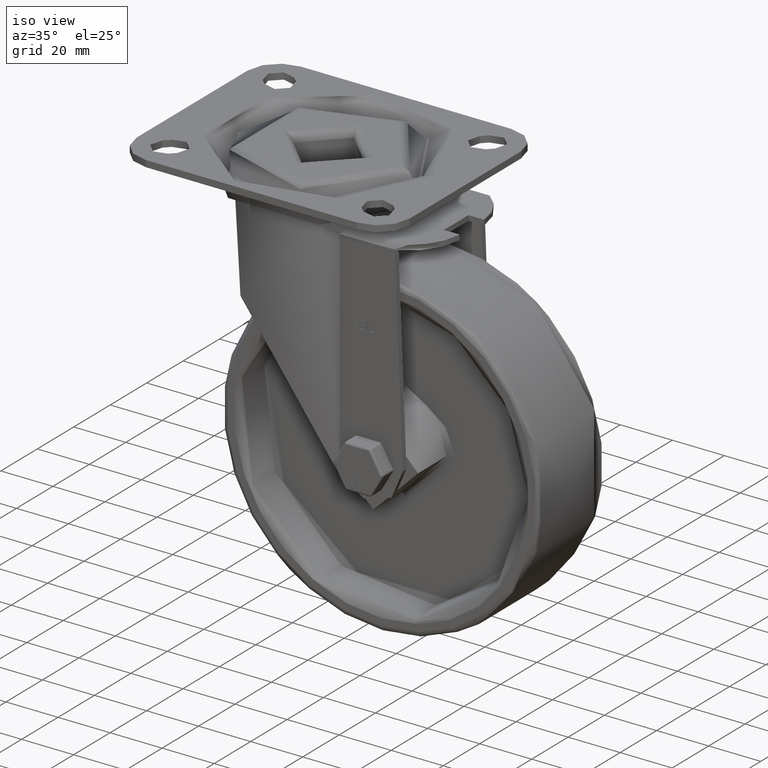
[diagram: clean part render]
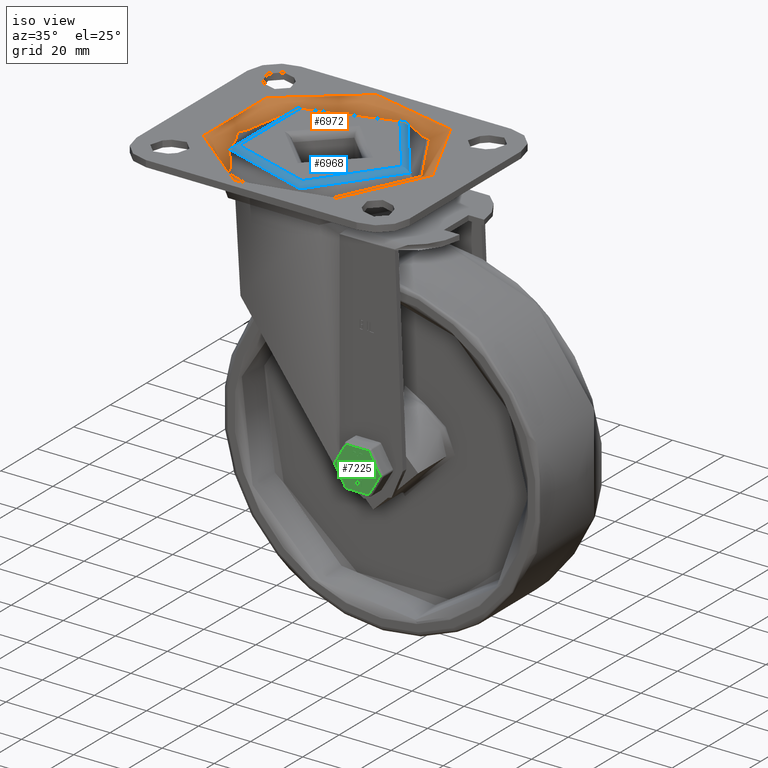
[diagram: same view with three faces highlighted in distinct colors, each labeled with its STEP entity id]
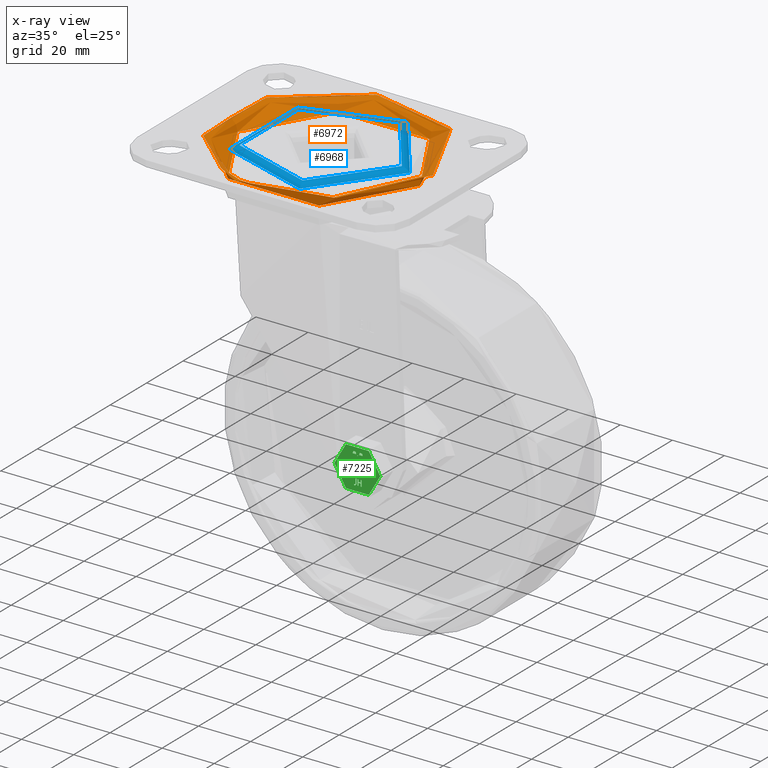
[diagram: x-ray of the same camera — body ghosted, the three highlighted faces saturated]
A machine part, iso view with three faces highlighted in distinct colors.
The next image is the same camera in x-ray (body ghosted, the three faces saturated) — at least one of them is partly hidden behind the body in this view.
Their STEP definitions:

[orange] entity #6972 — the highlighted toroidal blend (fillet) surface has major radius 40 mm and minor (blend) radius 5 mm.
#704=TOROIDAL_SURFACE('',#7561,40.,5.);
#736=FACE_OUTER_BOUND('',#1156,.T.);
#1156=EDGE_LOOP('',(#4778,#4779,#4780,#4781));
#2734=CIRCLE('',#7562,40.);
#2735=CIRCLE('',#7563,5.);
#2736=CIRCLE('',#7564,35.);
#3054=VERTEX_POINT('',#10345);
#3055=VERTEX_POINT('',#10347);
#3721=EDGE_CURVE('',#3054,#3054,#2734,.T.);
#3722=EDGE_CURVE('',#3054,#3055,#2735,.T.);
#3723=EDGE_CURVE('',#3055,#3055,#2736,.T.);
#4778=ORIENTED_EDGE('',*,*,#3721,.T.);
#4779=ORIENTED_EDGE('',*,*,#3722,.T.);
#4780=ORIENTED_EDGE('',*,*,#3723,.T.);
#4781=ORIENTED_EDGE('',*,*,#3722,.F.);
#6972=ADVANCED_FACE('',(#736),#704,.T.);
#7561=AXIS2_PLACEMENT_3D('',#10344,#8358,#8359);
#7562=AXIS2_PLACEMENT_3D('',#10346,#8360,#8361);
#7563=AXIS2_PLACEMENT_3D('',#10348,#8362,#8363);
#7564=AXIS2_PLACEMENT_3D('',#10349,#8364,#8365);
#8358=DIRECTION('center_axis',(0.,0.,-1.));
#8359=DIRECTION('ref_axis',(-1.,0.,0.));
#8360=DIRECTION('center_axis',(0.,0.,1.));
#8361=DIRECTION('ref_axis',(1.,1.22464679914735E-16,0.));
#8362=DIRECTION('center_axis',(-1.22464679914735E-16,-1.,0.));
#8363=DIRECTION('ref_axis',(1.,-1.22464679914735E-16,0.));
#8364=DIRECTION('center_axis',(6.53866449118381E-17,0.,-1.));
#8365=DIRECTION('ref_axis',(-1.,0.,-6.53866449118381E-17));
#10344=CARTESIAN_POINT('Origin',(1.63670789225912E-16,0.,-2.5));
#10345=CARTESIAN_POINT('',(40.,4.89858719658941E-15,2.5));
#10346=CARTESIAN_POINT('Origin',(1.63670789225912E-16,0.,2.5));
#10347=CARTESIAN_POINT('',(35.,4.28626379701574E-15,-2.49999999999993));
#10348=CARTESIAN_POINT('Origin',(40.,-4.89858719658941E-15,-2.5));
#10349=CARTESIAN_POINT('Origin',(1.63670789225907E-16,0.,-2.49999999999993));

[blue] entity #6968 — the highlighted toroidal blend (fillet) surface has major radius 28.0791 mm and minor (blend) radius 3.9967 mm.
#702=TOROIDAL_SURFACE('',#7549,28.0790627287701,3.99674981698405);
#732=FACE_OUTER_BOUND('',#1152,.T.);
#1152=EDGE_LOOP('',(#4762,#4763,#4764,#4765));
#2726=CIRCLE('',#7550,31.2000000000001);
#2727=CIRCLE('',#7551,3.99674981698405);
#2728=CIRCLE('',#7552,28.0790627287701);
#3048=VERTEX_POINT('',#10325);
#3049=VERTEX_POINT('',#10327);
#3711=EDGE_CURVE('',#3048,#3048,#2726,.T.);
#3712=EDGE_CURVE('',#3048,#3049,#2727,.T.);
#3713=EDGE_CURVE('',#3049,#3049,#2728,.T.);
#4762=ORIENTED_EDGE('',*,*,#3711,.F.);
#4763=ORIENTED_EDGE('',*,*,#3712,.T.);
#4764=ORIENTED_EDGE('',*,*,#3713,.F.);
#4765=ORIENTED_EDGE('',*,*,#3712,.F.);
#6968=ADVANCED_FACE('',(#732),#702,.T.);
#7549=AXIS2_PLACEMENT_3D('',#10324,#8332,#8333);
#7550=AXIS2_PLACEMENT_3D('',#10326,#8334,#8335);
#7551=AXIS2_PLACEMENT_3D('',#10328,#8336,#8337);
#7552=AXIS2_PLACEMENT_3D('',#10329,#8338,#8339);
#8332=DIRECTION('center_axis',(6.53866449118381E-17,0.,-1.));
#8333=DIRECTION('ref_axis',(-1.,0.,-6.23024418001784E-17));
#8334=DIRECTION('center_axis',(6.53866449118381E-17,0.,-1.));
#8335=DIRECTION('ref_axis',(-1.,0.,-6.53866449118381E-17));
#8336=DIRECTION('center_axis',(-1.22464679914735E-16,-1.,-8.00755453982671E-33));
#8337=DIRECTION('ref_axis',(1.,-1.22464679914735E-16,6.92249353335316E-17));
#8338=DIRECTION('center_axis',(0.,0.,1.));
#8339=DIRECTION('ref_axis',(1.,0.,0.));
#10324=CARTESIAN_POINT('Origin',(0.,0.,-1.49674981698399));
#10325=CARTESIAN_POINT('',(31.2000000000001,-3.82089801333975E-15,1.));
#10326=CARTESIAN_POINT('Origin',(-6.51824679655219E-17,0.,1.));
#10327=CARTESIAN_POINT('',(28.0790627287701,-3.4386934293846E-15,2.5));
#10328=CARTESIAN_POINT('Origin',(28.0790627287701,-3.4386934293846E-15,
-1.49674981698399));
#10329=CARTESIAN_POINT('Origin',(0.,0.,2.5));

[green] entity #7225 — the highlighted planar face has unit normal (-0, -1, 0).
#330=B_SPLINE_CURVE_WITH_KNOTS('',2,(#17586,#17587,#17588,#17589),
 .UNSPECIFIED.,.F.,.F.,(3,1,3),(0.,1.,2.),.UNSPECIFIED.);
#331=B_SPLINE_CURVE_WITH_KNOTS('',2,(#17591,#17592,#17593,#17594),
 .UNSPECIFIED.,.F.,.F.,(3,1,3),(0.,1.,2.),.UNSPECIFIED.);
#332=B_SPLINE_CURVE_WITH_KNOTS('',2,(#17598,#17599,#17600,#17601,#17602,
#17603),.UNSPECIFIED.,.F.,.F.,(3,1,1,1,3),(0.,1.,1.99999999999993,3.00827912477809,
4.01655824955625),.UNSPECIFIED.);
#333=B_SPLINE_CURVE_WITH_KNOTS('',2,(#17611,#17612,#17613,#17614,#17615,
#17616),.UNSPECIFIED.,.F.,.F.,(3,1,1,1,3),(0.,1.,1.99999999999993,3.00768321512988,
4.01536643025982),.UNSPECIFIED.);
#334=B_SPLINE_CURVE_WITH_KNOTS('',2,(#17620,#17621,#17622,#17623,#17624,
#17625),.UNSPECIFIED.,.F.,.F.,(3,1,1,1,3),(0.,1.,2.,2.99231678486998,3.98463356973996),
 .UNSPECIFIED.);
#335=B_SPLINE_CURVE_WITH_KNOTS('',2,(#17633,#17634,#17635,#17636),
 .UNSPECIFIED.,.F.,.F.,(3,1,3),(0.,1.,2.),.UNSPECIFIED.);
#336=B_SPLINE_CURVE_WITH_KNOTS('',2,(#17638,#17639,#17640,#17641),
 .UNSPECIFIED.,.F.,.F.,(3,1,3),(0.,1.,2.),.UNSPECIFIED.);
#337=B_SPLINE_CURVE_WITH_KNOTS('',2,(#17645,#17646,#17647,#17648,#17649,
#17650),.UNSPECIFIED.,.F.,.F.,(3,1,1,1,3),(0.,1.,2.,3.,3.99999999999994),
 .UNSPECIFIED.);
#338=B_SPLINE_CURVE_WITH_KNOTS('',2,(#17654,#17655,#17656,#17657,#17658,
#17659),.UNSPECIFIED.,.F.,.F.,(3,1,1,1,3),(0.,1.,2.,2.99163179916309,3.9832635983261),
 .UNSPECIFIED.);
#339=B_SPLINE_CURVE_WITH_KNOTS('',2,(#17663,#17664,#17665,#17666,#17667),
 .UNSPECIFIED.,.F.,.F.,(3,1,1,3),(0.,1.,2.,4.05874673629229),
 .UNSPECIFIED.);
#340=B_SPLINE_CURVE_WITH_KNOTS('',2,(#17671,#17672,#17673,#17674,#17675,
#17676,#17677,#17678,#17679,#17680,#17681,#17682,#17683,#17684),
 .UNSPECIFIED.,.F.,.F.,(3,1,1,1,1,1,1,1,1,1,1,1,3),(2.59332633308433,3.61650351907507,
4.63968070506577,5.65864108781717,6.67760147056856,7.68779660271567,8.6979917348628,
9.70400510123522,10.7100184676076,11.7252012266423,12.7403839856769,13.760110982666,
14.7798379796551),.UNSPECIFIED.);
#341=B_SPLINE_CURVE_WITH_KNOTS('',2,(#17686,#17687,#17688,#17689),
 .UNSPECIFIED.,.F.,.F.,(3,1,3),(14.7798379796551,14.9307861439262,14.955344591428),
 .UNSPECIFIED.);
#342=B_SPLINE_CURVE_WITH_KNOTS('',2,(#17691,#17692,#17693,#17694),
 .UNSPECIFIED.,.F.,.F.,(3,1,3),(0.835721234285714,1.,1.99999999999999),
 .UNSPECIFIED.);
#343=B_SPLINE_CURVE_WITH_KNOTS('',2,(#17696,#17697,#17698,#17699),
 .UNSPECIFIED.,.F.,.F.,(3,1,3),(1.99999999999999,8.88381706859683,15.7676341371938),
 .UNSPECIFIED.);
#344=B_SPLINE_CURVE_WITH_KNOTS('',2,(#17703,#17704,#17705,#17706,#17707,
#17708,#17709,#17710,#17711,#17712),.UNSPECIFIED.,.F.,.F.,(3,1,1,1,1,1,
1,1,3),(0.,1.,2.00000000000003,2.99139784946242,3.98279569892482,4.97798530244519,
5.97317490596557,6.97743524805971,7.98169559015383),.UNSPECIFIED.);
#345=B_SPLINE_CURVE_WITH_KNOTS('',2,(#17716,#17717,#17718,#17719),
 .UNSPECIFIED.,.F.,.F.,(3,1,3),(0.,1.,2.),.UNSPECIFIED.);
#346=B_SPLINE_CURVE_WITH_KNOTS('',2,(#17721,#17722,#17723,#17724),
 .UNSPECIFIED.,.F.,.F.,(3,1,3),(2.,2.14802801604429,2.1720950892248),
 .UNSPECIFIED.);
#347=B_SPLINE_CURVE_WITH_KNOTS('',2,(#17725,#17726,#17727,#17728),
 .UNSPECIFIED.,.F.,.F.,(3,1,3),(2.42039523109711,2.44469118258646,2.59332633308433),
 .UNSPECIFIED.);
#348=B_SPLINE_CURVE_WITH_KNOTS('',2,(#17731,#17732,#17733,#17734,#17735,
#17736),.UNSPECIFIED.,.F.,.F.,(3,1,1,1,3),(0.,1.,2.,3.00768321513003,4.0153664302601),
 .UNSPECIFIED.);
#349=B_SPLINE_CURVE_WITH_KNOTS('',2,(#17740,#17741,#17742,#17743,#17744,
#17745),.UNSPECIFIED.,.F.,.F.,(3,1,1,1,3),(0.,1.,1.99999999999996,2.9923167848699,
3.98463356973985),.UNSPECIFIED.);
#350=B_SPLINE_CURVE_WITH_KNOTS('',2,(#17749,#17750,#17751,#17752,#17753,
#17754,#17755,#17756,#17757,#17758,#17759,#17760,#17761,#17762),
 .UNSPECIFIED.,.F.,.F.,(3,1,1,1,1,1,1,1,1,1,1,1,3),(2.59332633308434,3.6165035190751,
4.63968070506582,5.65864108781724,6.67760147056865,7.68779660271578,8.69799173486291,
9.70400510123534,10.7100184676078,11.7252012266424,12.7403839856771,13.7601109826662,
14.7798379796553),.UNSPECIFIED.);
#351=B_SPLINE_CURVE_WITH_KNOTS('',2,(#17764,#17765,#17766,#17767),
 .UNSPECIFIED.,.F.,.F.,(3,1,3),(14.7798379796553,14.9307861439264,14.9553445914282),
 .UNSPECIFIED.);
#352=B_SPLINE_CURVE_WITH_KNOTS('',2,(#17769,#17770,#17771,#17772),
 .UNSPECIFIED.,.F.,.F.,(3,1,3),(0.835721234285862,1.,2.00000000000001),
 .UNSPECIFIED.);
#353=B_SPLINE_CURVE_WITH_KNOTS('',2,(#17774,#17775,#17776,#17777),
 .UNSPECIFIED.,.F.,.F.,(3,1,3),(2.00000000000001,8.88381706859695,15.7676341371941),
 .UNSPECIFIED.);
#354=B_SPLINE_CURVE_WITH_KNOTS('',2,(#17781,#17782,#17783,#17784,#17785,
#17786,#17787,#17788,#17789,#17790),.UNSPECIFIED.,.F.,.F.,(3,1,1,1,1,1,
1,1,3),(0.,1.,2.00000000000003,2.99139784946242,3.98279569892483,4.97798530244519,
5.97317490596557,6.97743524805971,7.98169559015383),.UNSPECIFIED.);
#355=B_SPLINE_CURVE_WITH_KNOTS('',2,(#17794,#17795,#17796,#17797),
 .UNSPECIFIED.,.F.,.F.,(3,1,3),(0.,1.,2.),.UNSPECIFIED.);
#356=B_SPLINE_CURVE_WITH_KNOTS('',2,(#17799,#17800,#17801,#17802),
 .UNSPECIFIED.,.F.,.F.,(3,1,3),(2.,2.14802801604429,2.17209508922479),
 .UNSPECIFIED.);
#357=B_SPLINE_CURVE_WITH_KNOTS('',2,(#17803,#17804,#17805,#17806),
 .UNSPECIFIED.,.F.,.F.,(3,1,3),(2.42039523109713,2.44469118258647,2.59332633308434),
 .UNSPECIFIED.);
#498=FACE_BOUND('',#1453,.T.);
#499=FACE_BOUND('',#1454,.T.);
#500=FACE_BOUND('',#1455,.T.);
#501=FACE_BOUND('',#1456,.T.);
#502=FACE_BOUND('',#1457,.T.);
#637=PLANE('',#8017);
#989=FACE_OUTER_BOUND('',#1452,.T.);
#1452=EDGE_LOOP('',(#6136,#6137,#6138,#6139,#6140,#6141));
#1453=EDGE_LOOP('',(#6142,#6143,#6144,#6145,#6146,#6147,#6148,#6149,#6150,
#6151,#6152,#6153,#6154));
#1454=EDGE_LOOP('',(#6155,#6156,#6157,#6158,#6159,#6160,#6161,#6162,#6163));
#1455=EDGE_LOOP('',(#6164,#6165,#6166,#6167,#6168,#6169,#6170,#6171,#6172,
#6173));
#1456=EDGE_LOOP('',(#6174,#6175,#6176,#6177));
#1457=EDGE_LOOP('',(#6178,#6179,#6180,#6181,#6182,#6183,#6184,#6185,#6186,
#6187));
#1987=LINE('',#17574,#2530);
#1988=LINE('',#17576,#2531);
#1989=LINE('',#17578,#2532);
#1990=LINE('',#17580,#2533);
#1991=LINE('',#17582,#2534);
#1992=LINE('',#17583,#2535);
#1993=LINE('',#17596,#2536);
#1994=LINE('',#17605,#2537);
#1995=LINE('',#17607,#2538);
#1996=LINE('',#17609,#2539);
#1997=LINE('',#17618,#2540);
#1998=LINE('',#17627,#2541);
#1999=LINE('',#17629,#2542);
#2000=LINE('',#17630,#2543);
#2001=LINE('',#17643,#2544);
#2002=LINE('',#17652,#2545);
#2003=LINE('',#17661,#2546);
#2004=LINE('',#17668,#2547);
#2005=LINE('',#17701,#2548);
#2006=LINE('',#17714,#2549);
#2007=LINE('',#17738,#2550);
#2008=LINE('',#17746,#2551);
#2009=LINE('',#17779,#2552);
#2010=LINE('',#17792,#2553);
#2530=VECTOR('',#9617,1000.);
#2531=VECTOR('',#9618,1000.);
#2532=VECTOR('',#9619,1000.);
#2533=VECTOR('',#9620,1000.);
#2534=VECTOR('',#9621,1000.);
#2535=VECTOR('',#9622,1000.);
#2536=VECTOR('',#9623,1000.);
#2537=VECTOR('',#9624,1000.);
#2538=VECTOR('',#9625,1000.);
#2539=VECTOR('',#9626,1000.);
#2540=VECTOR('',#9627,1000.);
#2541=VECTOR('',#9628,1000.);
#2542=VECTOR('',#9629,1000.);
#2543=VECTOR('',#9630,1000.);
#2544=VECTOR('',#9631,1000.);
#2545=VECTOR('',#9632,1000.);
#2546=VECTOR('',#9633,1000.);
#2547=VECTOR('',#9634,1000.);
#2548=VECTOR('',#9635,1000.);
#2549=VECTOR('',#9636,1000.);
#2550=VECTOR('',#9637,1000.);
#2551=VECTOR('',#9638,1000.);
#2552=VECTOR('',#9639,1000.);
#2553=VECTOR('',#9640,1000.);
#3472=VERTEX_POINT('',#17572);
#3473=VERTEX_POINT('',#17573);
#3474=VERTEX_POINT('',#17575);
#3475=VERTEX_POINT('',#17577);
#3476=VERTEX_POINT('',#17579);
#3477=VERTEX_POINT('',#17581);
#3478=VERTEX_POINT('',#17584);
#3479=VERTEX_POINT('',#17585);
#3480=VERTEX_POINT('',#17590);
#3481=VERTEX_POINT('',#17595);
#3482=VERTEX_POINT('',#17597);
#3483=VERTEX_POINT('',#17604);
#3484=VERTEX_POINT('',#17606);
#3485=VERTEX_POINT('',#17608);
#3486=VERTEX_POINT('',#17610);
#3487=VERTEX_POINT('',#17617);
#3488=VERTEX_POINT('',#17619);
#3489=VERTEX_POINT('',#17626);
#3490=VERTEX_POINT('',#17628);
#3491=VERTEX_POINT('',#17631);
#3492=VERTEX_POINT('',#17632);
#3493=VERTEX_POINT('',#17637);
#3494=VERTEX_POINT('',#17642);
#3495=VERTEX_POINT('',#17644);
#3496=VERTEX_POINT('',#17651);
#3497=VERTEX_POINT('',#17653);
#3498=VERTEX_POINT('',#17660);
#3499=VERTEX_POINT('',#17662);
#3500=VERTEX_POINT('',#17669);
#3501=VERTEX_POINT('',#17670);
#3502=VERTEX_POINT('',#17685);
#3503=VERTEX_POINT('',#17690);
#3504=VERTEX_POINT('',#17695);
#3505=VERTEX_POINT('',#17700);
#3506=VERTEX_POINT('',#17702);
#3507=VERTEX_POINT('',#17713);
#3508=VERTEX_POINT('',#17715);
#3509=VERTEX_POINT('',#17720);
#3510=VERTEX_POINT('',#17729);
#3511=VERTEX_POINT('',#17730);
#3512=VERTEX_POINT('',#17737);
#3513=VERTEX_POINT('',#17739);
#3514=VERTEX_POINT('',#17747);
#3515=VERTEX_POINT('',#17748);
#3516=VERTEX_POINT('',#17763);
#3517=VERTEX_POINT('',#17768);
#3518=VERTEX_POINT('',#17773);
#3519=VERTEX_POINT('',#17778);
#3520=VERTEX_POINT('',#17780);
#3521=VERTEX_POINT('',#17791);
#3522=VERTEX_POINT('',#17793);
#3523=VERTEX_POINT('',#17798);
#4386=EDGE_CURVE('',#3472,#3473,#1987,.T.);
#4387=EDGE_CURVE('',#3474,#3472,#1988,.T.);
#4388=EDGE_CURVE('',#3475,#3474,#1989,.T.);
#4389=EDGE_CURVE('',#3476,#3475,#1990,.T.);
#4390=EDGE_CURVE('',#3477,#3476,#1991,.T.);
#4391=EDGE_CURVE('',#3473,#3477,#1992,.T.);
#4392=EDGE_CURVE('',#3478,#3479,#330,.T.);
#4393=EDGE_CURVE('',#3479,#3480,#331,.T.);
#4394=EDGE_CURVE('',#3480,#3481,#1993,.T.);
#4395=EDGE_CURVE('',#3481,#3482,#332,.T.);
#4396=EDGE_CURVE('',#3482,#3483,#1994,.T.);
#4397=EDGE_CURVE('',#3483,#3484,#1995,.T.);
#4398=EDGE_CURVE('',#3484,#3485,#1996,.T.);
#4399=EDGE_CURVE('',#3485,#3486,#333,.T.);
#4400=EDGE_CURVE('',#3486,#3487,#1997,.T.);
#4401=EDGE_CURVE('',#3487,#3488,#334,.T.);
#4402=EDGE_CURVE('',#3488,#3489,#1998,.T.);
#4403=EDGE_CURVE('',#3489,#3490,#1999,.T.);
#4404=EDGE_CURVE('',#3490,#3478,#2000,.T.);
#4405=EDGE_CURVE('',#3491,#3492,#335,.T.);
#4406=EDGE_CURVE('',#3492,#3493,#336,.T.);
#4407=EDGE_CURVE('',#3493,#3494,#2001,.T.);
#4408=EDGE_CURVE('',#3494,#3495,#337,.T.);
#4409=EDGE_CURVE('',#3495,#3496,#2002,.T.);
#4410=EDGE_CURVE('',#3496,#3497,#338,.T.);
#4411=EDGE_CURVE('',#3497,#3498,#2003,.T.);
#4412=EDGE_CURVE('',#3498,#3499,#339,.T.);
#4413=EDGE_CURVE('',#3499,#3491,#2004,.T.);
#4414=EDGE_CURVE('',#3500,#3501,#340,.T.);
#4415=EDGE_CURVE('',#3501,#3502,#341,.T.);
#4416=EDGE_CURVE('',#3502,#3503,#342,.T.);
#4417=EDGE_CURVE('',#3503,#3504,#343,.T.);
#4418=EDGE_CURVE('',#3504,#3505,#2005,.T.);
#4419=EDGE_CURVE('',#3505,#3506,#344,.T.);
#4420=EDGE_CURVE('',#3506,#3507,#2006,.T.);
#4421=EDGE_CURVE('',#3507,#3508,#345,.T.);
#4422=EDGE_CURVE('',#3508,#3509,#346,.T.);
#4423=EDGE_CURVE('',#3509,#3500,#347,.T.);
#4424=EDGE_CURVE('',#3510,#3511,#348,.T.);
#4425=EDGE_CURVE('',#3511,#3512,#2007,.T.);
#4426=EDGE_CURVE('',#3512,#3513,#349,.T.);
#4427=EDGE_CURVE('',#3513,#3510,#2008,.T.);
#4428=EDGE_CURVE('',#3514,#3515,#350,.T.);
#4429=EDGE_CURVE('',#3515,#3516,#351,.T.);
#4430=EDGE_CURVE('',#3516,#3517,#352,.T.);
#4431=EDGE_CURVE('',#3517,#3518,#353,.T.);
#4432=EDGE_CURVE('',#3518,#3519,#2009,.T.);
#4433=EDGE_CURVE('',#3519,#3520,#354,.T.);
#4434=EDGE_CURVE('',#3520,#3521,#2010,.T.);
#4435=EDGE_CURVE('',#3521,#3522,#355,.T.);
#4436=EDGE_CURVE('',#3522,#3523,#356,.T.);
#4437=EDGE_CURVE('',#3523,#3514,#357,.T.);
#6136=ORIENTED_EDGE('',*,*,#4386,.F.);
#6137=ORIENTED_EDGE('',*,*,#4387,.F.);
#6138=ORIENTED_EDGE('',*,*,#4388,.F.);
#6139=ORIENTED_EDGE('',*,*,#4389,.F.);
#6140=ORIENTED_EDGE('',*,*,#4390,.F.);
#6141=ORIENTED_EDGE('',*,*,#4391,.F.);
#6142=ORIENTED_EDGE('',*,*,#4392,.T.);
#6143=ORIENTED_EDGE('',*,*,#4393,.T.);
#6144=ORIENTED_EDGE('',*,*,#4394,.T.);
#6145=ORIENTED_EDGE('',*,*,#4395,.T.);
#6146=ORIENTED_EDGE('',*,*,#4396,.T.);
#6147=ORIENTED_EDGE('',*,*,#4397,.T.);
#6148=ORIENTED_EDGE('',*,*,#4398,.T.);
#6149=ORIENTED_EDGE('',*,*,#4399,.T.);
#6150=ORIENTED_EDGE('',*,*,#4400,.T.);
#6151=ORIENTED_EDGE('',*,*,#4401,.T.);
#6152=ORIENTED_EDGE('',*,*,#4402,.T.);
#6153=ORIENTED_EDGE('',*,*,#4403,.T.);
#6154=ORIENTED_EDGE('',*,*,#4404,.T.);
#6155=ORIENTED_EDGE('',*,*,#4405,.T.);
#6156=ORIENTED_EDGE('',*,*,#4406,.T.);
#6157=ORIENTED_EDGE('',*,*,#4407,.T.);
#6158=ORIENTED_EDGE('',*,*,#4408,.T.);
#6159=ORIENTED_EDGE('',*,*,#4409,.T.);
#6160=ORIENTED_EDGE('',*,*,#4410,.T.);
#6161=ORIENTED_EDGE('',*,*,#4411,.T.);
#6162=ORIENTED_EDGE('',*,*,#4412,.T.);
#6163=ORIENTED_EDGE('',*,*,#4413,.T.);
#6164=ORIENTED_EDGE('',*,*,#4414,.T.);
#6165=ORIENTED_EDGE('',*,*,#4415,.T.);
#6166=ORIENTED_EDGE('',*,*,#4416,.T.);
#6167=ORIENTED_EDGE('',*,*,#4417,.T.);
#6168=ORIENTED_EDGE('',*,*,#4418,.T.);
#6169=ORIENTED_EDGE('',*,*,#4419,.T.);
#6170=ORIENTED_EDGE('',*,*,#4420,.T.);
#6171=ORIENTED_EDGE('',*,*,#4421,.T.);
#6172=ORIENTED_EDGE('',*,*,#4422,.T.);
#6173=ORIENTED_EDGE('',*,*,#4423,.T.);
#6174=ORIENTED_EDGE('',*,*,#4424,.T.);
#6175=ORIENTED_EDGE('',*,*,#4425,.T.);
#6176=ORIENTED_EDGE('',*,*,#4426,.T.);
#6177=ORIENTED_EDGE('',*,*,#4427,.T.);
#6178=ORIENTED_EDGE('',*,*,#4428,.T.);
#6179=ORIENTED_EDGE('',*,*,#4429,.T.);
#6180=ORIENTED_EDGE('',*,*,#4430,.T.);
#6181=ORIENTED_EDGE('',*,*,#4431,.T.);
#6182=ORIENTED_EDGE('',*,*,#4432,.T.);
#6183=ORIENTED_EDGE('',*,*,#4433,.T.);
#6184=ORIENTED_EDGE('',*,*,#4434,.T.);
#6185=ORIENTED_EDGE('',*,*,#4435,.T.);
#6186=ORIENTED_EDGE('',*,*,#4436,.T.);
#6187=ORIENTED_EDGE('',*,*,#4437,.T.);
#7225=ADVANCED_FACE('',(#989,#498,#499,#500,#501,#502),#637,.T.);
#8017=AXIS2_PLACEMENT_3D('',#17571,#9615,#9616);
#9615=DIRECTION('center_axis',(0.,-1.,-3.49148336110938E-15));
#9616=DIRECTION('ref_axis',(1.,0.,0.));
#9617=DIRECTION('',(1.,1.8789157342003E-30,-5.38142542831221E-16));
#9618=DIRECTION('',(0.5,-3.0237132876114E-15,0.866025403784439));
#9619=DIRECTION('',(-0.5,-3.0237132876114E-15,0.866025403784439));
#9620=DIRECTION('',(-1.,-1.25261048946687E-30,3.58761695220814E-16));
#9621=DIRECTION('',(-0.5,3.0237132876114E-15,-0.866025403784439));
#9622=DIRECTION('',(0.499999999999999,3.0237132876114E-15,-0.866025403784439));
#9623=DIRECTION('',(0.,3.49148336110938E-15,-1.));
#9624=DIRECTION('',(0.,-3.49148336110938E-15,1.));
#9625=DIRECTION('',(-1.,0.,0.));
#9626=DIRECTION('',(0.,3.49148336110938E-15,-1.));
#9627=DIRECTION('',(0.,-3.49148336110938E-15,1.));
#9628=DIRECTION('',(0.,3.49148336110938E-15,-1.));
#9629=DIRECTION('',(1.,0.,0.));
#9630=DIRECTION('',(0.,-3.49148336110938E-15,1.));
#9631=DIRECTION('',(0.,3.49148336110938E-15,-1.));
#9632=DIRECTION('',(-1.,0.,0.));
#9633=DIRECTION('',(1.,0.,0.));
#9634=DIRECTION('',(0.,-3.49148336110938E-15,1.));
#9635=DIRECTION('',(0.,3.49148336110938E-15,-1.));
#9636=DIRECTION('',(0.,-3.49148336110938E-15,1.));
#9637=DIRECTION('',(0.,-3.49148336110938E-15,1.));
#9638=DIRECTION('',(0.,3.49148336110938E-15,-1.));
#9639=DIRECTION('',(0.,3.49148336110938E-15,-1.));
#9640=DIRECTION('',(0.,-3.49148336110938E-15,1.));
#17571=CARTESIAN_POINT('Origin',(0.,-33.23,-33.2300000000001));
#17572=CARTESIAN_POINT('',(-4.4022958025709,-33.23,-25.6050000000001));
#17573=CARTESIAN_POINT('',(4.4022958025709,-33.23,-25.6050000000001));
#17574=CARTESIAN_POINT('',(2.28354585997652E-15,-33.23,-25.6050000000001));
#17575=CARTESIAN_POINT('',(-8.80459160514179,-33.23,-33.2300000000001));
#17576=CARTESIAN_POINT('',(-6.60344370385634,-33.23,-29.4175000000001));
#17577=CARTESIAN_POINT('',(-4.4022958025709,-33.23,-40.8550000000001));
#17578=CARTESIAN_POINT('',(-6.60344370385635,-33.23,-37.0425000000001));
#17579=CARTESIAN_POINT('',(4.40229580257089,-33.23,-40.8550000000001));
#17580=CARTESIAN_POINT('',(-2.10060506530995E-15,-33.23,-40.8550000000001));
#17581=CARTESIAN_POINT('',(8.80459160514179,-33.23,-33.2300000000001));
#17582=CARTESIAN_POINT('',(6.60344370385634,-33.23,-37.0425000000001));
#17583=CARTESIAN_POINT('',(6.60344370385635,-33.23,-29.4175000000001));
#17584=CARTESIAN_POINT('',(1.32731053178271,-33.23,-36.586332135036));
#17585=CARTESIAN_POINT('',(1.48262908617913,-33.23,-36.432255508111));
#17586=CARTESIAN_POINT('Ctrl Pts',(1.32731053178271,-33.23,-36.586332135036));
#17587=CARTESIAN_POINT('Ctrl Pts',(1.32731053178271,-33.23,-36.5219071474553));
#17588=CARTESIAN_POINT('Ctrl Pts',(1.41696217112697,-33.23,-36.432255508111));
#17589=CARTESIAN_POINT('Ctrl Pts',(1.48262908617913,-33.23,-36.432255508111));
#17590=CARTESIAN_POINT('',(1.63790883034207,-33.23,-36.586332135036));
#17591=CARTESIAN_POINT('Ctrl Pts',(1.48262908617913,-33.23,-36.432255508111));
#17592=CARTESIAN_POINT('Ctrl Pts',(1.54775265796254,-33.23,-36.432255508111));
#17593=CARTESIAN_POINT('Ctrl Pts',(1.63790883034207,-33.23,-36.5224116804905));
#17594=CARTESIAN_POINT('Ctrl Pts',(1.63790883034207,-33.23,-36.586332135036));
#17595=CARTESIAN_POINT('',(1.63790883034207,-33.23,-38.778178881186));
#17596=CARTESIAN_POINT('',(1.63790883034207,-33.23,-34.908166067518));
#17597=CARTESIAN_POINT('',(1.32731053178271,-33.23,-38.778178881186));
#17598=CARTESIAN_POINT('Ctrl Pts',(1.63790883034207,-33.23,-38.778178881186));
#17599=CARTESIAN_POINT('Ctrl Pts',(1.63790883034207,-33.23,-38.8426038687667));
#17600=CARTESIAN_POINT('Ctrl Pts',(1.54825719099781,-33.23,-38.932255508111));
#17601=CARTESIAN_POINT('Ctrl Pts',(1.4164576380917,-33.23,-38.932255508111));
#17602=CARTESIAN_POINT('Ctrl Pts',(1.32731053178271,-33.23,-38.843108401802));
#17603=CARTESIAN_POINT('Ctrl Pts',(1.32731053178271,-33.23,-38.778178881186));
#17604=CARTESIAN_POINT('',(1.32731053178271,-33.23,-37.7145456223683));
#17605=CARTESIAN_POINT('',(1.32731053178271,-33.23,-36.0040894405931));
#17606=CARTESIAN_POINT('',(0.420198944599399,-33.23,-37.7145456223683));
#17607=CARTESIAN_POINT('',(0.663655265891354,-33.23,-37.7145456223683));
#17608=CARTESIAN_POINT('',(0.420198944599399,-33.23,-38.778178881186));
#17609=CARTESIAN_POINT('',(0.420198944599399,-33.23,-35.4722728111842));
#17610=CARTESIAN_POINT('',(0.109600646040035,-33.23,-38.778178881186));
#17611=CARTESIAN_POINT('Ctrl Pts',(0.420198944599399,-33.23,-38.778178881186));
#17612=CARTESIAN_POINT('Ctrl Pts',(0.420198944599399,-33.23,-38.8426038687667));
#17613=CARTESIAN_POINT('Ctrl Pts',(0.330586115488619,-33.23,-38.932255508111));
#17614=CARTESIAN_POINT('Ctrl Pts',(0.198747752349027,-33.23,-38.932255508111));
#17615=CARTESIAN_POINT('Ctrl Pts',(0.109600646040035,-33.23,-38.843108401802));
#17616=CARTESIAN_POINT('Ctrl Pts',(0.109600646040035,-33.23,-38.778178881186));
#17617=CARTESIAN_POINT('',(0.109600646040035,-33.23,-36.586332135036));
#17618=CARTESIAN_POINT('',(0.109600646040035,-33.23,-36.0040894405931));
#17619=CARTESIAN_POINT('',(0.420198944599399,-33.23,-36.586332135036));
#17620=CARTESIAN_POINT('Ctrl Pts',(0.109600646040035,-33.23,-36.586332135036));
#17621=CARTESIAN_POINT('Ctrl Pts',(0.109600646040035,-33.23,-36.5219071474553));
#17622=CARTESIAN_POINT('Ctrl Pts',(0.199252285384297,-33.23,-36.432255508111));
#17623=CARTESIAN_POINT('Ctrl Pts',(0.330081582453349,-33.23,-36.432255508111));
#17624=CARTESIAN_POINT('Ctrl Pts',(0.420198944599399,-33.23,-36.5224116804905));
#17625=CARTESIAN_POINT('Ctrl Pts',(0.420198944599399,-33.23,-36.586332135036));
#17626=CARTESIAN_POINT('',(0.420198944599399,-33.23,-37.4064311787518));
#17627=CARTESIAN_POINT('',(0.420198944599399,-33.23,-34.908166067518));
#17628=CARTESIAN_POINT('',(1.32731053178271,-33.23,-37.4064311787518));
#17629=CARTESIAN_POINT('',(0.2100994722997,-33.23,-37.4064311787518));
#17630=CARTESIAN_POINT('',(1.32731053178271,-33.23,-35.318215589376));
#17631=CARTESIAN_POINT('',(-0.652554719086641,-33.23,-36.586332135036));
#17632=CARTESIAN_POINT('',(-0.497274974923701,-33.23,-36.432255508111));
#17633=CARTESIAN_POINT('Ctrl Pts',(-0.652554719086641,-33.23,-36.586332135036));
#17634=CARTESIAN_POINT('Ctrl Pts',(-0.652554719086641,-33.23,-36.5219071474553));
#17635=CARTESIAN_POINT('Ctrl Pts',(-0.562941889975861,-33.23,-36.432255508111));
#17636=CARTESIAN_POINT('Ctrl Pts',(-0.497274974923701,-33.23,-36.432255508111));
#17637=CARTESIAN_POINT('',(-0.341956420527277,-33.23,-36.586332135036));
#17638=CARTESIAN_POINT('Ctrl Pts',(-0.497274974923701,-33.23,-36.432255508111));
#17639=CARTESIAN_POINT('Ctrl Pts',(-0.43211259290681,-33.23,-36.432255508111));
#17640=CARTESIAN_POINT('Ctrl Pts',(-0.341956420527277,-33.23,-36.5224116804905));
#17641=CARTESIAN_POINT('Ctrl Pts',(-0.341956420527277,-33.23,-36.586332135036));
#17642=CARTESIAN_POINT('',(-0.341956420527277,-33.23,-38.41289696365));
#17643=CARTESIAN_POINT('',(-0.341956420527277,-33.23,-34.908166067518));
#17644=CARTESIAN_POINT('',(-0.862556892459716,-33.23,-38.932255508111));
#17645=CARTESIAN_POINT('Ctrl Pts',(-0.341956420527277,-33.23,-38.41289696365));
#17646=CARTESIAN_POINT('Ctrl Pts',(-0.341956420527277,-33.23,-38.5186548498894));
#17647=CARTESIAN_POINT('Ctrl Pts',(-0.425592473681773,-33.23,-38.7094847679222));
#17648=CARTESIAN_POINT('Ctrl Pts',(-0.564843591416497,-33.23,-38.8487358856569));
#17649=CARTESIAN_POINT('Ctrl Pts',(-0.755401837814907,-33.23,-38.932255508111));
#17650=CARTESIAN_POINT('Ctrl Pts',(-0.862556892459716,-33.23,-38.932255508111));
#17651=CARTESIAN_POINT('',(-1.22787762022921,-33.23,-38.932255508111));
#17652=CARTESIAN_POINT('',(-0.431278446229858,-33.23,-38.932255508111));
#17653=CARTESIAN_POINT('',(-1.22787762022921,-33.23,-38.6241410644945));
#17654=CARTESIAN_POINT('Ctrl Pts',(-1.22787762022921,-33.23,-38.932255508111));
#17655=CARTESIAN_POINT('Ctrl Pts',(-1.29404906831665,-33.23,-38.932255508111));
#17656=CARTESIAN_POINT('Ctrl Pts',(-1.38319617462564,-33.23,-38.843108401802));
#17657=CARTESIAN_POINT('Ctrl Pts',(-1.38319617462564,-33.23,-38.7137927038388));
#17658=CARTESIAN_POINT('Ctrl Pts',(-1.29354453528138,-33.23,-38.6241410644945));
#17659=CARTESIAN_POINT('Ctrl Pts',(-1.22787762022921,-33.23,-38.6241410644945));
#17660=CARTESIAN_POINT('',(-0.862556892459716,-33.23,-38.6241410644945));
#17661=CARTESIAN_POINT('',(-0.613938810114607,-33.23,-38.6241410644945));
#17662=CARTESIAN_POINT('',(-0.652554719086641,-33.23,-38.41289696365));
#17663=CARTESIAN_POINT('Ctrl Pts',(-0.862556892459716,-33.23,-38.6241410644945));
#17664=CARTESIAN_POINT('Ctrl Pts',(-0.820719460765727,-33.23,-38.6241410644945));
#17665=CARTESIAN_POINT('Ctrl Pts',(-0.743487096135822,-33.23,-38.5928212060742));
#17666=CARTESIAN_POINT('Ctrl Pts',(-0.652554719086641,-33.23,-38.501888829025));
#17667=CARTESIAN_POINT('Ctrl Pts',(-0.652554719086641,-33.23,-38.41289696365));
#17668=CARTESIAN_POINT('',(-0.652554719086641,-33.23,-35.821448481825));
#17669=CARTESIAN_POINT('',(0.917086363874114,-33.23,-27.2202196785034));
#17670=CARTESIAN_POINT('',(1.83087331121639,-33.23,-27.2201420580365));
#17671=CARTESIAN_POINT('Ctrl Pts',(0.917086363874114,-33.23,-27.2202196785034));
#17672=CARTESIAN_POINT('Ctrl Pts',(0.828793082701735,-33.23,-27.1319263973311));
#17673=CARTESIAN_POINT('Ctrl Pts',(0.731806309229306,-33.23,-26.8997247704061));
#17674=CARTESIAN_POINT('Ctrl Pts',(0.731806309229306,-33.23,-26.6365913873956));
#17675=CARTESIAN_POINT('Ctrl Pts',(0.828793082701735,-33.23,-26.4043509502372));
#17676=CARTESIAN_POINT('Ctrl Pts',(1.00848446372508,-33.23,-26.2246595692138));
#17677=CARTESIAN_POINT('Ctrl Pts',(1.24293708419205,-33.23,-26.1267413501378));
#17678=CARTESIAN_POINT('Ctrl Pts',(1.50490616019801,-33.23,-26.1267413501378));
#17679=CARTESIAN_POINT('Ctrl Pts',(1.73943640113194,-33.23,-26.2246983794473));
#17680=CARTESIAN_POINT('Ctrl Pts',(1.9190889719218,-33.23,-26.4043509502372));
#17681=CARTESIAN_POINT('Ctrl Pts',(2.0165802784295,-33.23,-26.6378333148671));
#17682=CARTESIAN_POINT('Ctrl Pts',(2.0165802784295,-33.23,-26.8985216531681));
#17683=CARTESIAN_POINT('Ctrl Pts',(1.9190889719218,-33.23,-27.1319263973311));
#17684=CARTESIAN_POINT('Ctrl Pts',(1.83087331121639,-33.23,-27.2201420580365));
#17685=CARTESIAN_POINT('',(1.79137953934869,-33.23,-27.2552199663062));
#17686=CARTESIAN_POINT('Ctrl Pts',(1.83087331121639,-33.23,-27.2201420580365));
#17687=CARTESIAN_POINT('Ctrl Pts',(1.81686281692926,-33.23,-27.232173230416));
#17688=CARTESIAN_POINT('Ctrl Pts',(1.79416521961439,-33.23,-27.2531109742611));
#17689=CARTESIAN_POINT('Ctrl Pts',(1.79137953934867,-33.23,-27.2552199663062));
#17690=CARTESIAN_POINT('',(1.83079569074942,-33.23,-27.2902333397056));
#17691=CARTESIAN_POINT('Ctrl Pts',(1.79137953934849,-33.23,-27.255219966306));
#17692=CARTESIAN_POINT('Ctrl Pts',(1.79419916284154,-33.23,-27.2573557920387));
#17693=CARTESIAN_POINT('Ctrl Pts',(1.81701805786319,-33.23,-27.278435028727));
#17694=CARTESIAN_POINT('Ctrl Pts',(1.83079569074942,-33.23,-27.2902333397056));
#17695=CARTESIAN_POINT('',(2.0165802784295,-33.23,-27.7420620779073));
#17696=CARTESIAN_POINT('Ctrl Pts',(1.83079569074942,-33.23,-27.2902333397056));
#17697=CARTESIAN_POINT('Ctrl Pts',(1.9190889719218,-33.23,-27.378526620878));
#17698=CARTESIAN_POINT('Ctrl Pts',(2.0165802784295,-33.23,-27.6120089855079));
#17699=CARTESIAN_POINT('Ctrl Pts',(2.0165802784295,-33.23,-27.7420620779073));
#17700=CARTESIAN_POINT('',(2.0165802784295,-33.23,-27.9855962930092));
#17701=CARTESIAN_POINT('',(2.0165802784295,-33.23,-30.4860310389537));
#17702=CARTESIAN_POINT('',(0.731806309229306,-33.23,-27.9855962930092));
#17703=CARTESIAN_POINT('Ctrl Pts',(2.0165802784295,-33.23,-27.9855962930092));
#17704=CARTESIAN_POINT('Ctrl Pts',(2.0165802784295,-33.23,-28.1161927286773));
#17705=CARTESIAN_POINT('Ctrl Pts',(1.9190889719218,-33.23,-28.3496362830737));
#17706=CARTESIAN_POINT('Ctrl Pts',(1.73939759089846,-33.23,-28.5293276640971));
#17707=CARTESIAN_POINT('Ctrl Pts',(1.50610927743596,-33.23,-28.6267413501378));
#17708=CARTESIAN_POINT('Ctrl Pts',(1.24177277718758,-33.23,-28.6267413501378));
#17709=CARTESIAN_POINT('Ctrl Pts',(1.0084456534916,-33.23,-28.5292888538636));
#17710=CARTESIAN_POINT('Ctrl Pts',(0.828793082701735,-33.23,-28.3496362830737));
#17711=CARTESIAN_POINT('Ctrl Pts',(0.731806309229306,-33.23,-28.1173958459153));
#17712=CARTESIAN_POINT('Ctrl Pts',(0.731806309229306,-33.23,-27.9855962930092));
#17713=CARTESIAN_POINT('',(0.731806309229306,-33.23,-27.7420620779073));
#17714=CARTESIAN_POINT('',(0.731806309229306,-33.23,-30.6077981465046));
#17715=CARTESIAN_POINT('',(0.91700874340715,-33.23,-27.2903109601726));
#17716=CARTESIAN_POINT('Ctrl Pts',(0.731806309229306,-33.23,-27.7420620779073));
#17717=CARTESIAN_POINT('Ctrl Pts',(0.731806309229306,-33.23,-27.6107670580365));
#17718=CARTESIAN_POINT('Ctrl Pts',(0.828793082701735,-33.23,-27.378526620878));
#17719=CARTESIAN_POINT('Ctrl Pts',(0.91700874340715,-33.23,-27.2903109601726));
#17720=CARTESIAN_POINT('',(0.956512085162513,-33.23,-27.2552096759202));
#17721=CARTESIAN_POINT('Ctrl Pts',(0.91700874340715,-33.23,-27.2903109601726));
#17722=CARTESIAN_POINT('Ctrl Pts',(0.931019237694283,-33.23,-27.2782797877931));
#17723=CARTESIAN_POINT('Ctrl Pts',(0.953714687775624,-33.23,-27.2573214646066));
#17724=CARTESIAN_POINT('Ctrl Pts',(0.956512085162444,-33.23,-27.2552096759202));
#17725=CARTESIAN_POINT('Ctrl Pts',(0.956512085162609,-33.23,-27.2552096759202));
#17726=CARTESIAN_POINT('Ctrl Pts',(0.95368942830413,-33.23,-27.2530824085032));
#17727=CARTESIAN_POINT('Ctrl Pts',(0.930863996760354,-33.23,-27.2320179894821));
#17728=CARTESIAN_POINT('Ctrl Pts',(0.917086363874114,-33.23,-27.2202196785034));
#17729=CARTESIAN_POINT('',(0.294764269984397,-33.23,-28.4726647232128));
#17730=CARTESIAN_POINT('',(-0.0158340285749668,-33.23,-28.4726647232128));
#17731=CARTESIAN_POINT('Ctrl Pts',(0.294764269984397,-33.23,-28.4726647232128));
#17732=CARTESIAN_POINT('Ctrl Pts',(0.294764269984397,-33.23,-28.5370897107936));
#17733=CARTESIAN_POINT('Ctrl Pts',(0.205151440873617,-33.23,-28.6267413501378));
#17734=CARTESIAN_POINT('Ctrl Pts',(0.0733130777340247,-33.23,-28.6267413501378));
#17735=CARTESIAN_POINT('Ctrl Pts',(-0.0158340285749668,-33.23,-28.5375942438288));
#17736=CARTESIAN_POINT('Ctrl Pts',(-0.0158340285749668,-33.23,-28.4726647232128));
#17737=CARTESIAN_POINT('',(-0.0158340285749668,-33.23,-28.3509170207787));
#17738=CARTESIAN_POINT('',(-0.0158340285749668,-33.23,-30.8513323616065));
#17739=CARTESIAN_POINT('',(0.294764269984397,-33.23,-28.3509170207787));
#17740=CARTESIAN_POINT('Ctrl Pts',(-0.0158340285749668,-33.23,-28.3509170207787));
#17741=CARTESIAN_POINT('Ctrl Pts',(-0.0158340285749668,-33.23,-28.2864920331979));
#17742=CARTESIAN_POINT('Ctrl Pts',(0.0738176107692953,-33.23,-28.1968403938537));
#17743=CARTESIAN_POINT('Ctrl Pts',(0.204646907838347,-33.23,-28.1968403938537));
#17744=CARTESIAN_POINT('Ctrl Pts',(0.294764269984397,-33.23,-28.2869965662332));
#17745=CARTESIAN_POINT('Ctrl Pts',(0.294764269984397,-33.23,-28.3509170207787));
#17746=CARTESIAN_POINT('',(0.294764269984397,-33.23,-30.7904585103894));
#17747=CARTESIAN_POINT('',(-1.57173628888296,-33.23,-27.2202196785034));
#17748=CARTESIAN_POINT('',(-0.65794934154069,-33.23,-27.2201420580365));
#17749=CARTESIAN_POINT('Ctrl Pts',(-1.57173628888296,-33.23,-27.2202196785034));
#17750=CARTESIAN_POINT('Ctrl Pts',(-1.66002957005534,-33.23,-27.1319263973311));
#17751=CARTESIAN_POINT('Ctrl Pts',(-1.75701634352777,-33.23,-26.8997247704061));
#17752=CARTESIAN_POINT('Ctrl Pts',(-1.75701634352777,-33.23,-26.6365913873956));
#17753=CARTESIAN_POINT('Ctrl Pts',(-1.66002957005534,-33.23,-26.4043509502372));
#17754=CARTESIAN_POINT('Ctrl Pts',(-1.480338189032,-33.23,-26.2246595692138));
#17755=CARTESIAN_POINT('Ctrl Pts',(-1.24588556856503,-33.23,-26.1267413501378));
#17756=CARTESIAN_POINT('Ctrl Pts',(-0.98391649255907,-33.23,-26.1267413501378));
#17757=CARTESIAN_POINT('Ctrl Pts',(-0.749386251625141,-33.23,-26.2246983794473));
#17758=CARTESIAN_POINT('Ctrl Pts',(-0.569733680835275,-33.23,-26.4043509502372));
#17759=CARTESIAN_POINT('Ctrl Pts',(-0.472242374327575,-33.23,-26.6378333148671));
#17760=CARTESIAN_POINT('Ctrl Pts',(-0.472242374327575,-33.23,-26.8985216531681));
#17761=CARTESIAN_POINT('Ctrl Pts',(-0.569733680835275,-33.23,-27.1319263973311));
#17762=CARTESIAN_POINT('Ctrl Pts',(-0.65794934154069,-33.23,-27.2201420580365));
#17763=CARTESIAN_POINT('',(-0.697443113408385,-33.23,-27.2552199663062));
#17764=CARTESIAN_POINT('Ctrl Pts',(-0.65794934154069,-33.23,-27.2201420580365));
#17765=CARTESIAN_POINT('Ctrl Pts',(-0.671959835827823,-33.23,-27.232173230416));
#17766=CARTESIAN_POINT('Ctrl Pts',(-0.694657433142689,-33.23,-27.2531109742611));
#17767=CARTESIAN_POINT('Ctrl Pts',(-0.697443113408406,-33.23,-27.2552199663062));
#17768=CARTESIAN_POINT('',(-0.658026962007654,-33.23,-27.2902333397056));
#17769=CARTESIAN_POINT('Ctrl Pts',(-0.697443113408588,-33.23,-27.255219966306));
#17770=CARTESIAN_POINT('Ctrl Pts',(-0.694623489915536,-33.23,-27.2573557920387));
#17771=CARTESIAN_POINT('Ctrl Pts',(-0.671804594893894,-33.23,-27.278435028727));
#17772=CARTESIAN_POINT('Ctrl Pts',(-0.658026962007654,-33.23,-27.2902333397056));
#17773=CARTESIAN_POINT('',(-0.472242374327575,-33.23,-27.7420620779073));
#17774=CARTESIAN_POINT('Ctrl Pts',(-0.658026962007654,-33.23,-27.2902333397056));
#17775=CARTESIAN_POINT('Ctrl Pts',(-0.569733680835275,-33.23,-27.378526620878));
#17776=CARTESIAN_POINT('Ctrl Pts',(-0.472242374327575,-33.23,-27.6120089855079));
#17777=CARTESIAN_POINT('Ctrl Pts',(-0.472242374327575,-33.23,-27.7420620779073));
#17778=CARTESIAN_POINT('',(-0.472242374327575,-33.23,-27.9855962930092));
#17779=CARTESIAN_POINT('',(-0.472242374327575,-33.23,-30.4860310389537));
#17780=CARTESIAN_POINT('',(-1.75701634352777,-33.23,-27.9855962930092));
#17781=CARTESIAN_POINT('Ctrl Pts',(-0.472242374327575,-33.23,-27.9855962930092));
#17782=CARTESIAN_POINT('Ctrl Pts',(-0.472242374327575,-33.23,-28.1161927286773));
#17783=CARTESIAN_POINT('Ctrl Pts',(-0.569733680835275,-33.23,-28.3496362830737));
#17784=CARTESIAN_POINT('Ctrl Pts',(-0.749425061858623,-33.23,-28.5293276640971));
#17785=CARTESIAN_POINT('Ctrl Pts',(-0.982713375321117,-33.23,-28.6267413501378));
#17786=CARTESIAN_POINT('Ctrl Pts',(-1.2470498755695,-33.23,-28.6267413501378));
#17787=CARTESIAN_POINT('Ctrl Pts',(-1.48037699926548,-33.23,-28.5292888538636));
#17788=CARTESIAN_POINT('Ctrl Pts',(-1.66002957005534,-33.23,-28.3496362830737));
#17789=CARTESIAN_POINT('Ctrl Pts',(-1.75701634352777,-33.23,-28.1173958459153));
#17790=CARTESIAN_POINT('Ctrl Pts',(-1.75701634352777,-33.23,-27.9855962930092));
#17791=CARTESIAN_POINT('',(-1.75701634352777,-33.23,-27.7420620779073));
#17792=CARTESIAN_POINT('',(-1.75701634352777,-33.23,-30.6077981465046));
#17793=CARTESIAN_POINT('',(-1.57181390934993,-33.23,-27.2903109601726));
#17794=CARTESIAN_POINT('Ctrl Pts',(-1.75701634352777,-33.23,-27.7420620779073));
#17795=CARTESIAN_POINT('Ctrl Pts',(-1.75701634352777,-33.23,-27.6107670580365));
#17796=CARTESIAN_POINT('Ctrl Pts',(-1.66002957005534,-33.23,-27.378526620878));
#17797=CARTESIAN_POINT('Ctrl Pts',(-1.57181390934993,-33.23,-27.2903109601726));
#17798=CARTESIAN_POINT('',(-1.53231056759457,-33.23,-27.2552096759202));
#17799=CARTESIAN_POINT('Ctrl Pts',(-1.57181390934993,-33.23,-27.2903109601726));
#17800=CARTESIAN_POINT('Ctrl Pts',(-1.5578034150628,-33.23,-27.2782797877931));
#17801=CARTESIAN_POINT('Ctrl Pts',(-1.53510796498146,-33.23,-27.2573214646066));
#17802=CARTESIAN_POINT('Ctrl Pts',(-1.53231056759464,-33.23,-27.2552096759202));
#17803=CARTESIAN_POINT('Ctrl Pts',(-1.53231056759447,-33.23,-27.2552096759202));
#17804=CARTESIAN_POINT('Ctrl Pts',(-1.53513322445295,-33.23,-27.2530824085032));
#17805=CARTESIAN_POINT('Ctrl Pts',(-1.55795865599673,-33.23,-27.2320179894821));
#17806=CARTESIAN_POINT('Ctrl Pts',(-1.57173628888296,-33.23,-27.2202196785034));